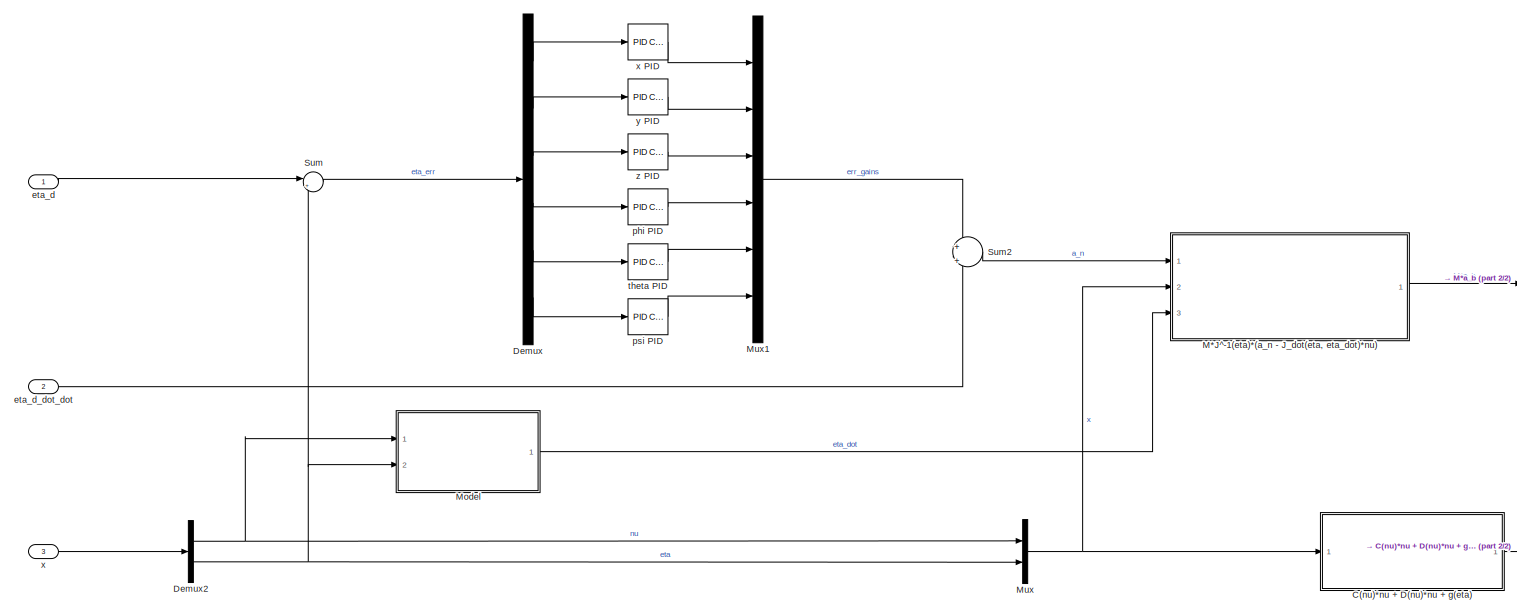
[diagram: root canvas - part 1/2, most of the canvas]
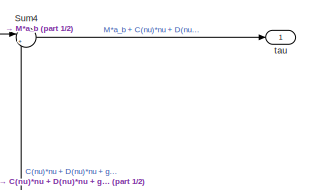
[diagram: root canvas - part 2/2, middle right region]
MODEL slx_56ba8a0fac46
KIND model
CONFIG AbsTol = auto
CONFIG EnableMultiTasking = off
CONFIG FixedStep = auto
CONFIG MaxStep = auto
CONFIG MinStep = auto
CONFIG RelTol = 1e-3
CONFIG SampleTimeConstraint = Unconstrained
CONFIG Solver = VariableStepAuto
CONFIG SolverName = VariableStepAuto
CONFIG StartTime = 0.0
CONFIG StopTime = 10.0
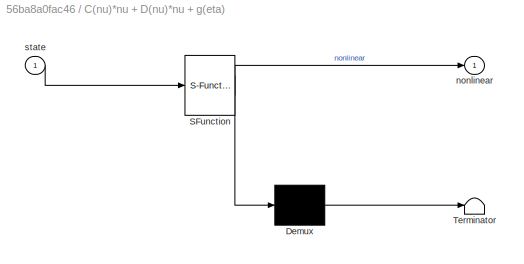
BLOCK [SubSystem] C(nu)*nu + D(nu)*nu + g(eta)
  ErrorFcn = Stateflow.Translate.translate
  PermitHierarchicalResolution = ExplicitOnly
  Ports = [1, 1]
  RequestExecContextInheritance = off
  SFBlockType = MATLAB Function
  TreatAsAtomicUnit = on
BLOCK [Demux] C(nu)*nu + D(nu)*nu + g(eta)/ Demux 
  Outputs = 1
  Ports = [1, 1]
BLOCK [S-Function] C(nu)*nu + D(nu)*nu + g(eta)/ SFunction 
  EnableBusSupport = on
  FunctionName = sf_sfun
  Parameters = params
  PortCounts = [1 2]
  Ports = [1, 2]
  SFcnIsStateOwnerBlock = off
  SFunctionDeploymentMode = off
  Tag = Stateflow S-Function 1
BLOCK [Terminator] C(nu)*nu + D(nu)*nu + g(eta)/ Terminator 
BLOCK [Outport] C(nu)*nu + D(nu)*nu + g(eta)/nonlinear
  IconDisplay = Port number
BLOCK [Inport] C(nu)*nu + D(nu)*nu + g(eta)/state
  IconDisplay = Port number
BLOCK [Demux] Demux
  DisplayOption = bar
  Outputs = 6
  Ports = [1, 6]
BLOCK [Demux] Demux2
  DisplayOption = bar
  Outputs = [6,6]
  Ports = [1, 2]
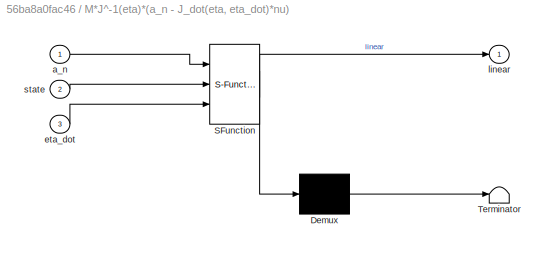
BLOCK [SubSystem] M*J^-1(eta)*(a_n - J_dot(eta, eta_dot)*nu)
  ErrorFcn = Stateflow.Translate.translate
  PermitHierarchicalResolution = ExplicitOnly
  Ports = [3, 1]
  RequestExecContextInheritance = off
  SFBlockType = MATLAB Function
  TreatAsAtomicUnit = on
BLOCK [Demux] M*J^-1(eta)*(a_n - J_dot(eta, eta_dot)*nu)/ Demux 
  Outputs = 1
  Ports = [1, 1]
BLOCK [S-Function] M*J^-1(eta)*(a_n - J_dot(eta, eta_dot)*nu)/ SFunction 
  EnableBusSupport = on
  FunctionName = sf_sfun
  Parameters = params
  PortCounts = [3 2]
  Ports = [3, 2]
  SFcnIsStateOwnerBlock = off
  SFunctionDeploymentMode = off
  Tag = Stateflow S-Function 2
BLOCK [Terminator] M*J^-1(eta)*(a_n - J_dot(eta, eta_dot)*nu)/ Terminator 
BLOCK [Inport] M*J^-1(eta)*(a_n - J_dot(eta, eta_dot)*nu)/a_n
  IconDisplay = Port number
BLOCK [Inport] M*J^-1(eta)*(a_n - J_dot(eta, eta_dot)*nu)/eta_dot
  IconDisplay = Port number
  Port = 3
BLOCK [Outport] M*J^-1(eta)*(a_n - J_dot(eta, eta_dot)*nu)/linear
  IconDisplay = Port number
BLOCK [Inport] M*J^-1(eta)*(a_n - J_dot(eta, eta_dot)*nu)/state
  IconDisplay = Port number
  Port = 2
BLOCK [ModelReference] Model
  ModelNameDialog = frame_conversion
  ModelReferenceVersion = 1.30
  Ports = [2, 1]
BLOCK [Mux] Mux
  DisplayOption = bar
  Inputs = [6,6]
  Ports = [2, 1]
BLOCK [Mux] Mux1
  DisplayOption = bar
  Inputs = 6
  Ports = [6, 1]
BLOCK [Sum] Sum
  IconShape = round
  InputSameDT = off
  Inputs = |+-
  OutDataTypeStr = Inherit: Inherit via internal rule
  Ports = [2, 1]
  SaturateOnIntegerOverflow = off
BLOCK [Sum] Sum2
  IconShape = round
  InputSameDT = off
  Inputs = +||+
  OutDataTypeStr = Inherit: Inherit via internal rule
  Ports = [2, 1]
  SaturateOnIntegerOverflow = off
BLOCK [Sum] Sum4
  IconShape = round
  InputSameDT = off
  Inputs = |++
  OutDataTypeStr = Inherit: Inherit via internal rule
  Ports = [2, 1]
  SaturateOnIntegerOverflow = off
BLOCK [Inport] eta_d
  IconDisplay = Port number
  PortDimensions = 6
BLOCK [Inport] eta_d_dot_dot
  IconDisplay = Port number
  Port = 2
  PortDimensions = 6
BLOCK [Reference] phi PID   REF=simulink/Continuous/PID Controller
  Ports = [1, 1]
  SourceBlock = simulink/Continuous/PID Controller
  SourceProductBaseCode = SL
  SourceProductName = Simulink
  SourceType = PID 1dof
BLOCK [Reference] psi PID   REF=simulink/Continuous/PID Controller
  Ports = [1, 1]
  SourceBlock = simulink/Continuous/PID Controller
  SourceProductBaseCode = SL
  SourceProductName = Simulink
  SourceType = PID 1dof
BLOCK [Outport] tau 
  IconDisplay = Port number
  PortDimensions = 6
  VectorParamsAs1DForOutWhenUnconnected = off
BLOCK [Reference] theta PID   REF=simulink/Continuous/PID Controller
  Ports = [1, 1]
  SourceBlock = simulink/Continuous/PID Controller
  SourceProductBaseCode = SL
  SourceProductName = Simulink
  SourceType = PID 1dof
BLOCK [Inport] x
  IconDisplay = Port number
  Port = 3
  PortDimensions = 12
BLOCK [Reference] x PID  REF=simulink/Continuous/PID Controller
  Ports = [1, 1]
  SourceBlock = simulink/Continuous/PID Controller
  SourceProductBaseCode = SL
  SourceProductName = Simulink
  SourceType = PID 1dof
BLOCK [Reference] y PID  REF=simulink/Continuous/PID Controller
  Ports = [1, 1]
  SourceBlock = simulink/Continuous/PID Controller
  SourceProductBaseCode = SL
  SourceProductName = Simulink
  SourceType = PID 1dof
BLOCK [Reference] z PID   REF=simulink/Continuous/PID Controller
  Ports = [1, 1]
  SourceBlock = simulink/Continuous/PID Controller
  SourceProductBaseCode = SL
  SourceProductName = Simulink
  SourceType = PID 1dof
LINE C(nu)*nu + D(nu)*nu + g(eta):1 -> Sum4:2
NET Demux2:1 -> Model:1, Mux:1
NET Demux2:2 -> Model:2, Mux:2, Sum:2
LINE Demux:1 -> x PID:1
LINE Demux:2 -> y PID:1
LINE Demux:3 -> z PID :1
LINE Demux:4 -> phi PID :1
LINE Demux:5 -> theta PID :1
LINE Demux:6 -> psi PID :1
LINE M*J^-1(eta)*(a_n - J_dot(eta, eta_dot)*nu):1 -> Sum4:1
LINE Model:1 -> M*J^-1(eta)*(a_n - J_dot(eta, eta_dot)*nu):3
LINE Mux1:1 -> Sum2:1
NET Mux:1 -> C(nu)*nu + D(nu)*nu + g(eta):1, M*J^-1(eta)*(a_n - J_dot(eta, eta_dot)*nu):2
LINE Sum2:1 -> M*J^-1(eta)*(a_n - J_dot(eta, eta_dot)*nu):1
LINE Sum4:1 -> tau :1
LINE Sum:1 -> Demux:1
LINE eta_d:1 -> Sum:1
LINE eta_d_dot_dot:1 -> Sum2:2
LINE phi PID :1 -> Mux1:4
LINE psi PID :1 -> Mux1:6
LINE theta PID :1 -> Mux1:5
LINE x PID:1 -> Mux1:1
LINE x:1 -> Demux2:1
LINE y PID:1 -> Mux1:2
LINE z PID :1 -> Mux1:3
note: NET lines group one-source signal fan-out (src -> all destinations, sorted); 1:1 wires keep LINE
CHART C(nu)*nu + D(nu)*nu + g(eta) states=1 transitions=1
  STATE_LABEL 'eML_blk_kernel()'
  STATE_LABEL 'SCRIPT:\nfunction nonlinear  = feedback_linearization(state, params)\n%#codegen\n\n% [nonlinear] = fcn(nu, eta, params) returns the nonlinear terms of the AUV\n% model taking rhe previous iterations state\n\n% Load params in to local variables\nm = params.m;\nW = params.W;\nB = params.B; \nIxx = params.Ixx;\nIyy = params.Iyy;\nIzz = params.Izz;\nxg = params.xg;\nyg = params.yg;\nzg = params.zg;\nxb = params.xb;\nyb...<+2236ch>'
CHART M*J^-1(eta)*(a_n - J_dot(eta, eta_dot)*nu) states=1 transitions=1
  STATE_LABEL 'eML_blk_kernel()'
  STATE_LABEL 'SCRIPT:\nfunction linear = compute_linear_terms(a_n, state, eta_dot, params)\n%#codegen\n\n% [linear]  = compute_linear_terms(a_n, state, eta_dot, params) returns the \n% linear result of the controller output, namely M*a_b where \n% a_b = J^-1(eta)*(a_n - J_dot(eta,eta_dot)*nu and a_b, a_n  are the \n% commanded accelerations in body and world frame respectively.\n\n% Load params in to local variables\nm =...<+3608ch>'
